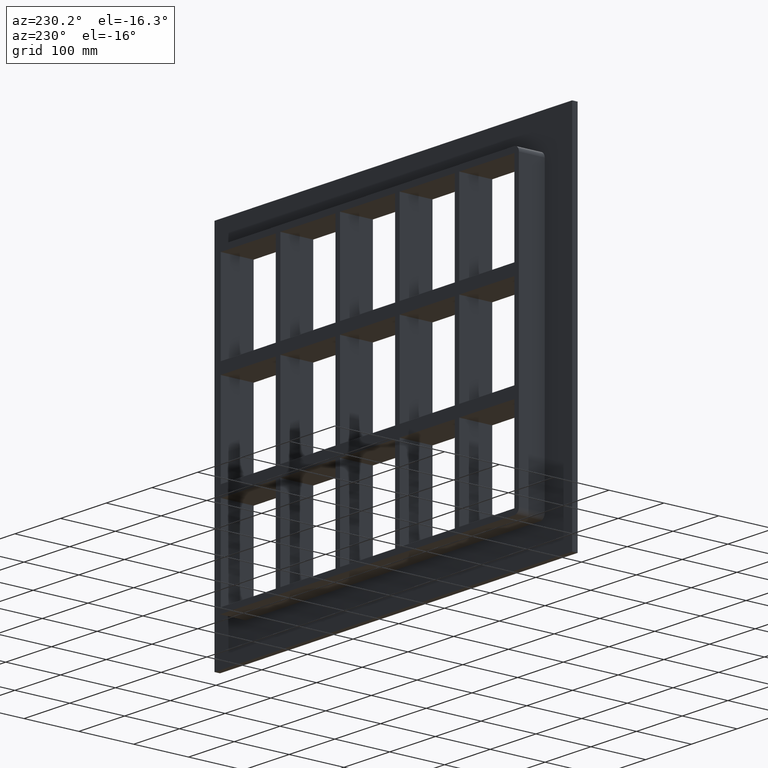
[diagram: clean part render]
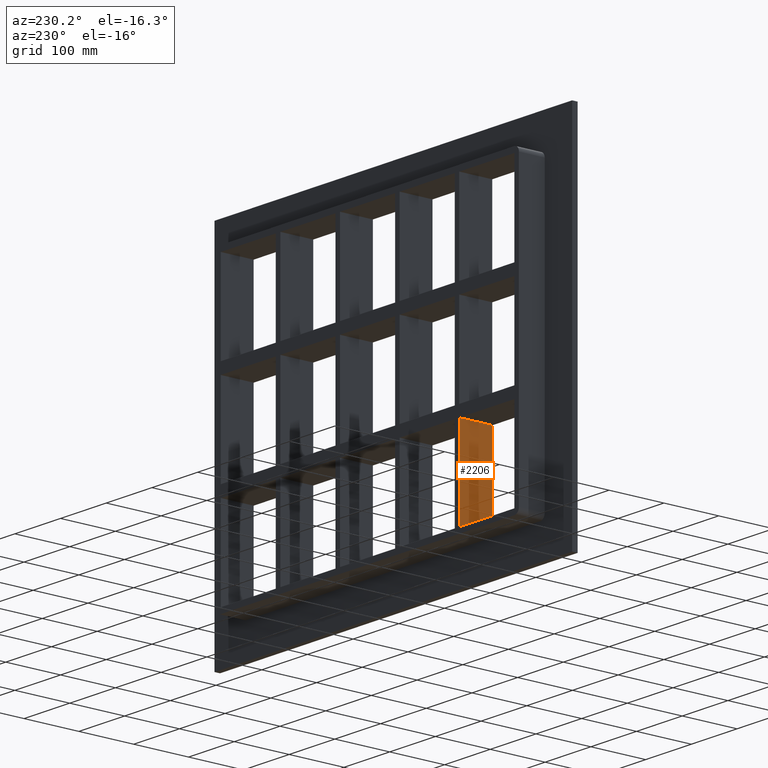
[diagram: same view with one face highlighted and labeled with its STEP entity id]
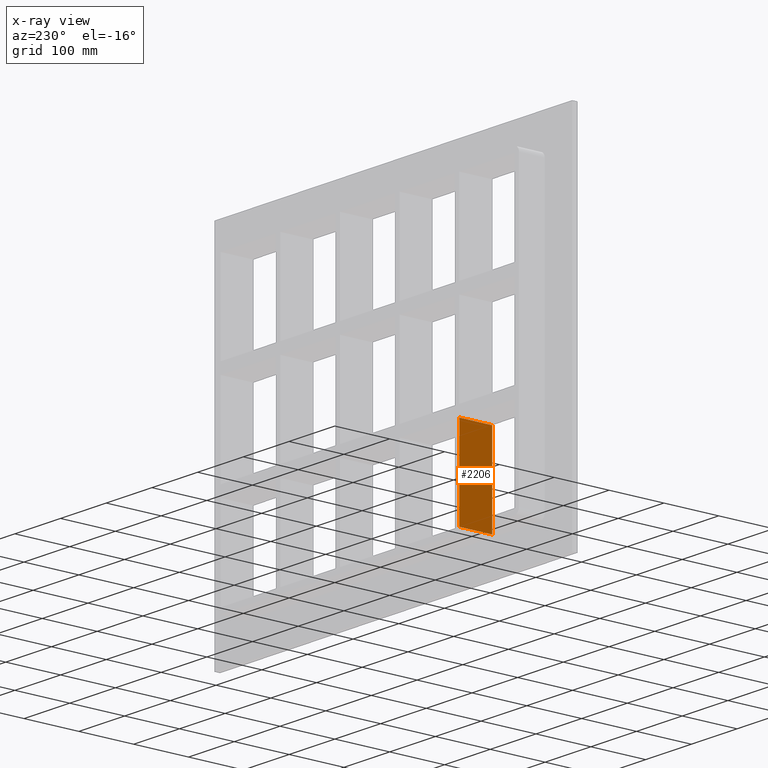
[diagram: x-ray of the same camera — body ghosted, the highlighted face saturated]
A machine part, auxiliary view. The second image highlights one B-rep face of the part: STEP entity #2206.
The next image is the same camera in x-ray: the body ghosted, the highlighted face saturated — about 0% of this face is hidden behind the body in this view.
In plain terms, the highlighted planar face has unit normal (-1, 0, 0).
Its self-contained STEP definition (entity closure, byte-faithful):
#1080=CARTESIAN_POINT('',(-200.75000000000131,57.0,-259.25000000000006));
#1081=VERTEX_POINT('',#1080);
#1088=CARTESIAN_POINT('',(-200.75000000000131,57.0,-99.750000000009337));
#1089=VERTEX_POINT('',#1088);
#1090=CARTESIAN_POINT('',(-200.75000000000131,57.0,-259.25000000000006));
#1091=DIRECTION('',(0.0,0.0,1.0));
#1092=VECTOR('',#1091,159.49999999999071);
#1093=LINE('',#1090,#1092);
#1094=EDGE_CURVE('',#1081,#1089,#1093,.T.);
#1921=CARTESIAN_POINT('',(-200.75000000000131,-3.0,-99.750000000009337));
#1922=VERTEX_POINT('',#1921);
#1931=CARTESIAN_POINT('',(-200.75000000000131,-3.0,-259.25000000000006));
#1932=VERTEX_POINT('',#1931);
#1933=CARTESIAN_POINT('',(-200.75000000000131,-3.0,-259.25000000000006));
#1934=DIRECTION('',(0.0,0.0,1.0));
#1935=VECTOR('',#1934,159.49999999999071);
#1936=LINE('',#1933,#1935);
#1937=EDGE_CURVE('',#1932,#1922,#1936,.T.);
#2108=CARTESIAN_POINT('',(-200.75000000000134,-3.0,-99.750000000009337));
#2109=DIRECTION('',(0.0,1.0,0.0));
#2110=VECTOR('',#2109,60.0);
#2111=LINE('',#2108,#2110);
#2112=EDGE_CURVE('',#1922,#1089,#2111,.T.);
#2190=CARTESIAN_POINT('',(-200.75000000000131,-3.0,-259.25000000000006));
#2191=DIRECTION('',(-1.0,0.0,0.0));
#2192=DIRECTION('',(0.0,0.0,1.0));
#2193=AXIS2_PLACEMENT_3D('',#2190,#2191,#2192);
#2194=PLANE('',#2193);
#2195=ORIENTED_EDGE('',*,*,#2112,.T.);
#2196=ORIENTED_EDGE('',*,*,#1094,.F.);
#2197=CARTESIAN_POINT('',(-200.75000000000131,-3.0,-259.25000000000006));
#2198=DIRECTION('',(0.0,1.0,0.0));
#2199=VECTOR('',#2198,60.000000000000007);
#2200=LINE('',#2197,#2199);
#2201=EDGE_CURVE('',#1932,#1081,#2200,.T.);
#2202=ORIENTED_EDGE('',*,*,#2201,.F.);
#2203=ORIENTED_EDGE('',*,*,#1937,.T.);
#2204=EDGE_LOOP('',(#2195,#2196,#2202,#2203));
#2205=FACE_OUTER_BOUND('',#2204,.T.);
#2206=ADVANCED_FACE('',(#2205),#2194,.T.);